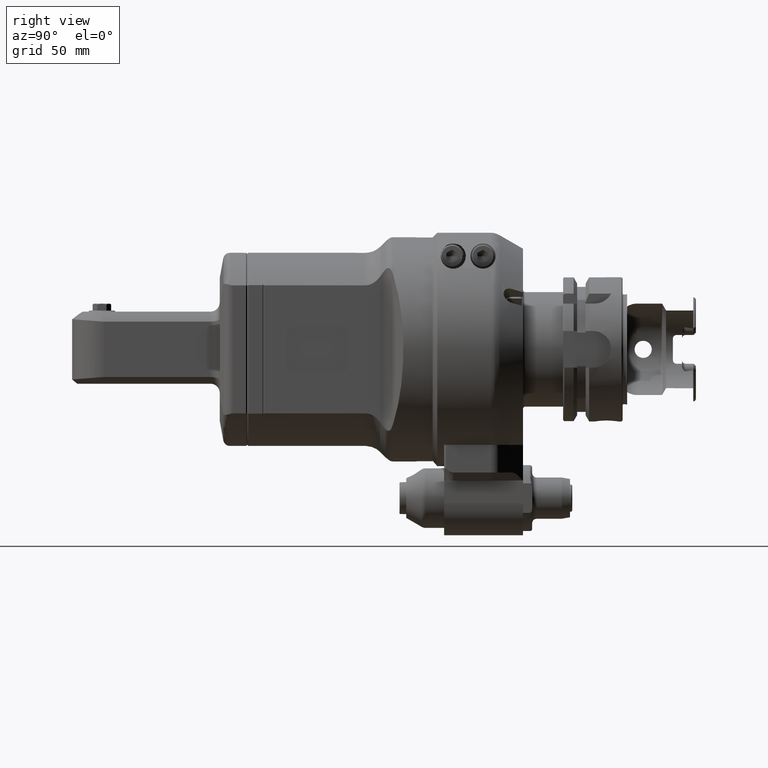
[diagram: clean part render]
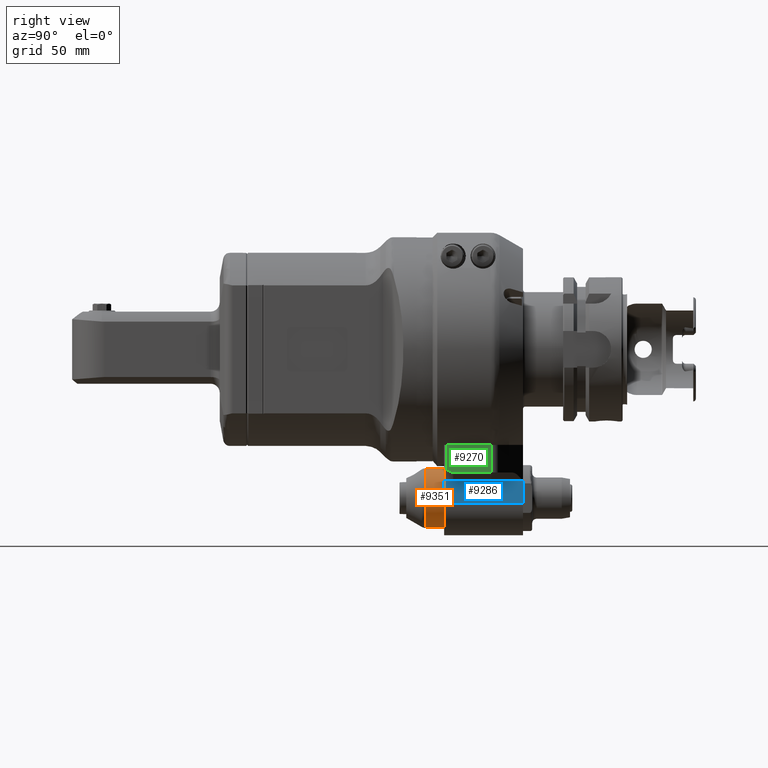
[diagram: same view with three faces highlighted in distinct colors, each labeled with its STEP entity id]
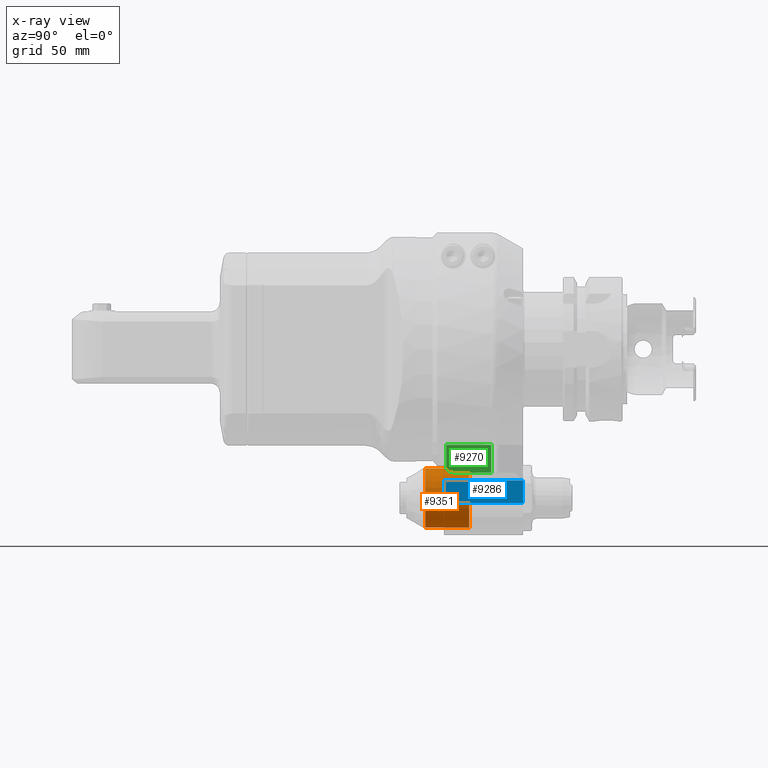
[diagram: x-ray of the same camera — body ghosted, the three highlighted faces saturated]
A machine part, right view with three faces highlighted in distinct colors.
The next image is the same camera in x-ray (body ghosted, the three faces saturated) — at least one of them is partly hidden behind the body in this view.
Their STEP definitions:

[orange] entity #9351 — the highlighted cylindrical surface (bore or boss wall) has radius 13 mm, axis along (0, -1, 0).
#1147=LINE('',#17406,#1796);
#1796=VECTOR('',#12804,0.511811023622047);
#1970=CYLINDRICAL_SURFACE('',#10347,0.511811023622047);
#2461=FACE_OUTER_BOUND('',#3058,.T.);
#3058=EDGE_LOOP('',(#8330,#8331,#8332,#8333,#8334));
#3499=CIRCLE('',#10346,0.511811023622047);
#3500=CIRCLE('',#10348,0.511811023622047);
#3501=CIRCLE('',#10349,0.511811023622047);
#4369=VERTEX_POINT('',#17399);
#4370=VERTEX_POINT('',#17402);
#4371=VERTEX_POINT('',#17403);
#5700=EDGE_CURVE('',#4369,#4369,#3499,.T.);
#5701=EDGE_CURVE('',#4370,#4371,#3500,.T.);
#5702=EDGE_CURVE('',#4371,#4370,#3501,.T.);
#5703=EDGE_CURVE('',#4371,#4369,#1147,.T.);
#8330=ORIENTED_EDGE('',*,*,#5701,.F.);
#8331=ORIENTED_EDGE('',*,*,#5702,.F.);
#8332=ORIENTED_EDGE('',*,*,#5703,.T.);
#8333=ORIENTED_EDGE('',*,*,#5700,.F.);
#8334=ORIENTED_EDGE('',*,*,#5703,.F.);
#9351=ADVANCED_FACE('',(#2461),#1970,.T.);
#10346=AXIS2_PLACEMENT_3D('',#17400,#12796,#12797);
#10347=AXIS2_PLACEMENT_3D('',#17401,#12798,#12799);
#10348=AXIS2_PLACEMENT_3D('',#17404,#12800,#12801);
#10349=AXIS2_PLACEMENT_3D('',#17405,#12802,#12803);
#12796=DIRECTION('center_axis',(0.,1.,0.));
#12797=DIRECTION('ref_axis',(0.,0.,-1.));
#12798=DIRECTION('center_axis',(0.,-1.,0.));
#12799=DIRECTION('ref_axis',(0.,0.,-1.));
#12800=DIRECTION('center_axis',(0.,-1.,0.));
#12801=DIRECTION('ref_axis',(0.,0.,1.));
#12802=DIRECTION('center_axis',(0.,-1.,0.));
#12803=DIRECTION('ref_axis',(0.,0.,1.));
#12804=DIRECTION('',(0.,1.,0.));
#17399=CARTESIAN_POINT('',(-6.26787731847071E-17,0.62992125984252,-2.04724409448819));
#17400=CARTESIAN_POINT('Origin',(0.,0.62992125984252,-2.55905511811024));
#17401=CARTESIAN_POINT('Origin',(0.,0.196850393700788,-2.55905511811024));
#17402=CARTESIAN_POINT('',(0.,-0.12583277254752,-3.07086614173228));
#17403=CARTESIAN_POINT('',(-6.26787731847071E-17,-0.12583277254752,-2.04724409448819));
#17404=CARTESIAN_POINT('Origin',(0.,-0.12583277254752,-2.55905511811024));
#17405=CARTESIAN_POINT('Origin',(0.,-0.12583277254752,-2.55905511811024));
#17406=CARTESIAN_POINT('',(-6.26787731847071E-17,0.196850393700788,-2.04724409448819));

[blue] entity #9286 — the highlighted planar face has unit normal (-1, 0, 0).
#1045=LINE('',#16848,#1694);
#1068=LINE('',#16924,#1717);
#1077=LINE('',#16955,#1726);
#1080=LINE('',#16963,#1729);
#1694=VECTOR('',#12442,0.393700787401575);
#1717=VECTOR('',#12499,0.393700787401575);
#1726=VECTOR('',#12528,1.35826771653543);
#1729=VECTOR('',#12539,1.35826771653543);
#2396=FACE_OUTER_BOUND('',#2984,.T.);
#2984=EDGE_LOOP('',(#8032,#8033,#8034,#8035));
#4257=VERTEX_POINT('',#16845);
#4258=VERTEX_POINT('',#16847);
#4281=VERTEX_POINT('',#16921);
#4282=VERTEX_POINT('',#16923);
#5519=EDGE_CURVE('',#4258,#4257,#1045,.T.);
#5554=EDGE_CURVE('',#4282,#4281,#1068,.T.);
#5571=EDGE_CURVE('',#4281,#4258,#1077,.T.);
#5575=EDGE_CURVE('',#4282,#4257,#1080,.T.);
#8032=ORIENTED_EDGE('',*,*,#5571,.T.);
#8033=ORIENTED_EDGE('',*,*,#5519,.T.);
#8034=ORIENTED_EDGE('',*,*,#5575,.F.);
#8035=ORIENTED_EDGE('',*,*,#5554,.T.);
#8811=PLANE('',#10250);
#9286=ADVANCED_FACE('',(#2396),#8811,.F.);
#10250=AXIS2_PLACEMENT_3D('',#16962,#12537,#12538);
#12442=DIRECTION('',(0.,0.,-1.));
#12499=DIRECTION('',(0.,0.,1.));
#12528=DIRECTION('',(0.,-1.,0.));
#12537=DIRECTION('center_axis',(-1.,0.,0.));
#12538=DIRECTION('ref_axis',(0.,-1.,0.));
#12539=DIRECTION('',(0.,-1.,0.));
#16845=CARTESIAN_POINT('',(0.590551181102362,0.196850393700788,-2.64763779527559));
#16847=CARTESIAN_POINT('',(0.590551181102362,0.196850393700788,-2.25393700787402));
#16848=CARTESIAN_POINT('',(0.590551181102362,0.196850393700788,-2.25393700787402));
#16921=CARTESIAN_POINT('',(0.590551181102362,1.55511811023622,-2.25393700787402));
#16923=CARTESIAN_POINT('',(0.590551181102362,1.55511811023622,-2.64763779527559));
#16924=CARTESIAN_POINT('',(0.590551181102362,1.55511811023622,-2.64763779527559));
#16955=CARTESIAN_POINT('',(0.590551181102362,1.55511811023622,-2.25393700787402));
#16962=CARTESIAN_POINT('Origin',(0.590551181102362,2.05905511811024,-1.48818888188976));
#16963=CARTESIAN_POINT('',(0.590551181102362,1.55511811023622,-2.64763779527559));

[green] entity #9270 — the highlighted planar face has unit normal (-1, 0, 0).
#213=(
BOUNDED_CURVE()
B_SPLINE_CURVE(2,(#16793,#16794,#16795),.UNSPECIFIED.,.F.,.F.)
B_SPLINE_CURVE_WITH_KNOTS((3,3),(1.73736103353156,2.47170469126801),
 .UNSPECIFIED.)
CURVE()
GEOMETRIC_REPRESENTATION_ITEM()
RATIONAL_B_SPLINE_CURVE((1.75262800199672,1.75262800199672,1.61816620350837))
REPRESENTATION_ITEM('')
);
#1027=LINE('',#16783,#1676);
#1030=LINE('',#16790,#1679);
#1031=LINE('',#16792,#1680);
#1032=LINE('',#16796,#1681);
#1676=VECTOR('',#12398,0.653071338865748);
#1679=VECTOR('',#12403,0.771181556094882);
#1680=VECTOR('',#12404,0.417190876336614);
#1681=VECTOR('',#12405,0.473854275157874);
#2380=FACE_OUTER_BOUND('',#2963,.T.);
#2963=EDGE_LOOP('',(#7906,#7907,#7908,#7909,#7910));
#4228=VERTEX_POINT('',#16776);
#4230=VERTEX_POINT('',#16782);
#4232=VERTEX_POINT('',#16788);
#4233=VERTEX_POINT('',#16789);
#4234=VERTEX_POINT('',#16791);
#5489=EDGE_CURVE('',#4230,#4228,#1027,.T.);
#5492=EDGE_CURVE('',#4232,#4233,#1030,.T.);
#5493=EDGE_CURVE('',#4234,#4232,#1031,.T.);
#5494=EDGE_CURVE('',#4230,#4234,#213,.T.);
#5495=EDGE_CURVE('',#4233,#4228,#1032,.T.);
#7906=ORIENTED_EDGE('',*,*,#5492,.F.);
#7907=ORIENTED_EDGE('',*,*,#5493,.F.);
#7908=ORIENTED_EDGE('',*,*,#5494,.F.);
#7909=ORIENTED_EDGE('',*,*,#5489,.T.);
#7910=ORIENTED_EDGE('',*,*,#5495,.F.);
#8802=PLANE('',#10207);
#9270=ADVANCED_FACE('',(#2380),#8802,.F.);
#10207=AXIS2_PLACEMENT_3D('',#16787,#12401,#12402);
#12398=DIRECTION('',(4.371282475133E-12,1.,1.17976780454E-8));
#12401=DIRECTION('center_axis',(-1.,0.,0.));
#12402=DIRECTION('ref_axis',(0.,0.,-1.));
#12403=DIRECTION('',(0.,1.,0.));
#12404=DIRECTION('',(3.486783873224E-14,8.150357303662E-13,1.));
#12405=DIRECTION('',(6.022780049711E-12,-1.751169642154E-10,-1.));
#16776=CARTESIAN_POINT('',(1.14173228386529,1.007402028453,-2.11755505908715));
#16782=CARTESIAN_POINT('',(1.14173228346457,0.354330689587402,-2.11755507026417));
#16783=CARTESIAN_POINT('',(1.14173228346457,0.354330689587402,-2.11755507026417));
#16787=CARTESIAN_POINT('Origin',(1.14173228346457,1.22047244094488,-2.98228346456693));
#16788=CARTESIAN_POINT('',(1.14173228346457,0.236220472440945,-1.64370078740157));
#16789=CARTESIAN_POINT('',(1.14173228346457,1.00740202853583,-1.64370078740157));
#16790=CARTESIAN_POINT('',(1.14173228346457,0.236220472440945,-1.64370078740157));
#16791=CARTESIAN_POINT('',(1.14173228346457,0.236220472440551,-2.06089166373819));
#16792=CARTESIAN_POINT('',(1.14173228346457,0.236220472440551,-2.06089166373819));
#16793=CARTESIAN_POINT('Ctrl Pts',(1.14173228346457,0.354330689587401,-2.11755507026403));
#16794=CARTESIAN_POINT('Ctrl Pts',(1.14173228346457,0.299806294948921,-2.11755507026403));
#16795=CARTESIAN_POINT('Ctrl Pts',(1.14173228346457,0.236220472443904,-2.06089166374059));
#16796=CARTESIAN_POINT('',(1.14173228346457,1.00740202853583,-1.64370078740157));